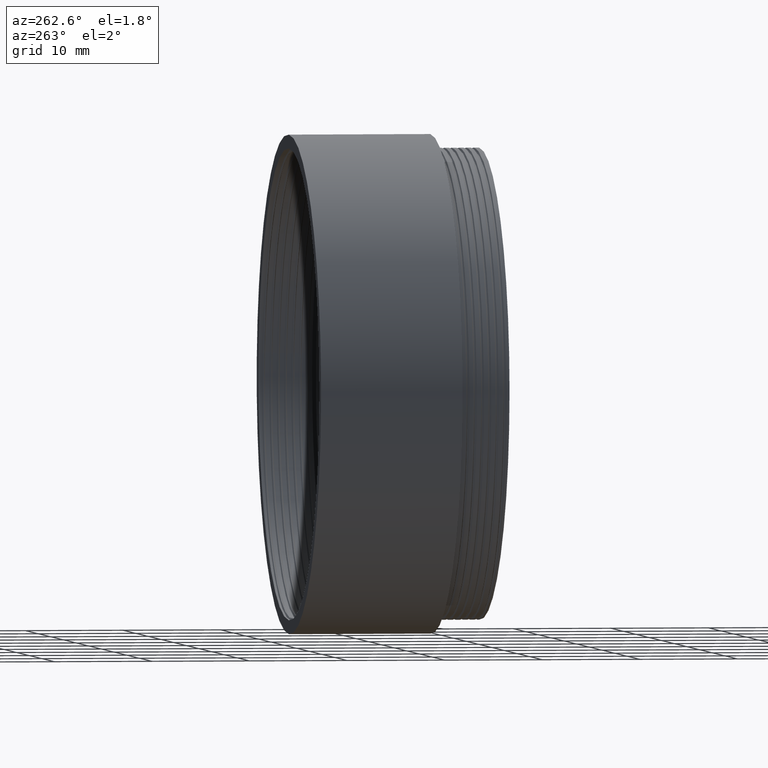
[diagram: clean part render]
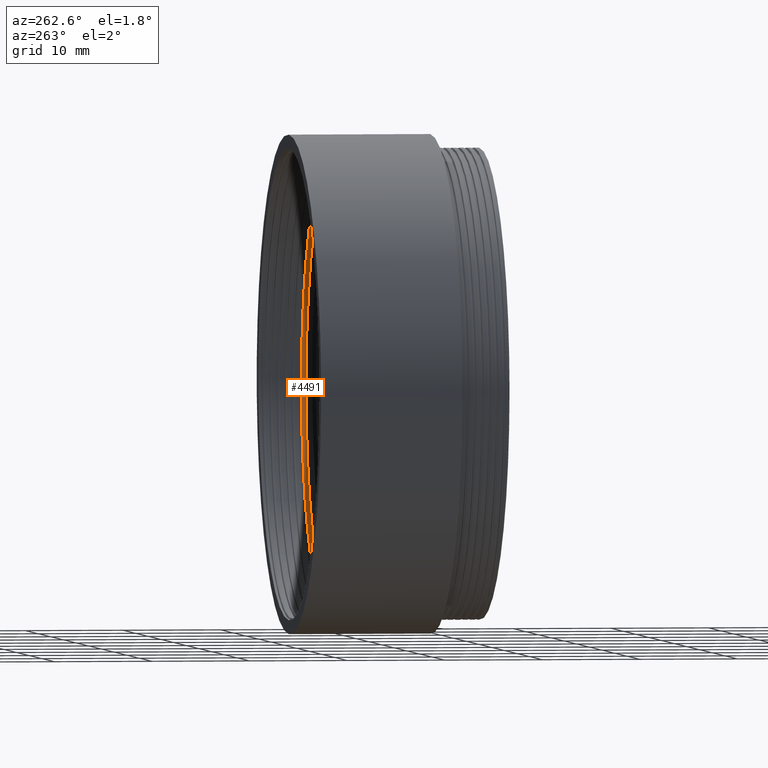
[diagram: same view with one face highlighted and labeled with its STEP entity id]
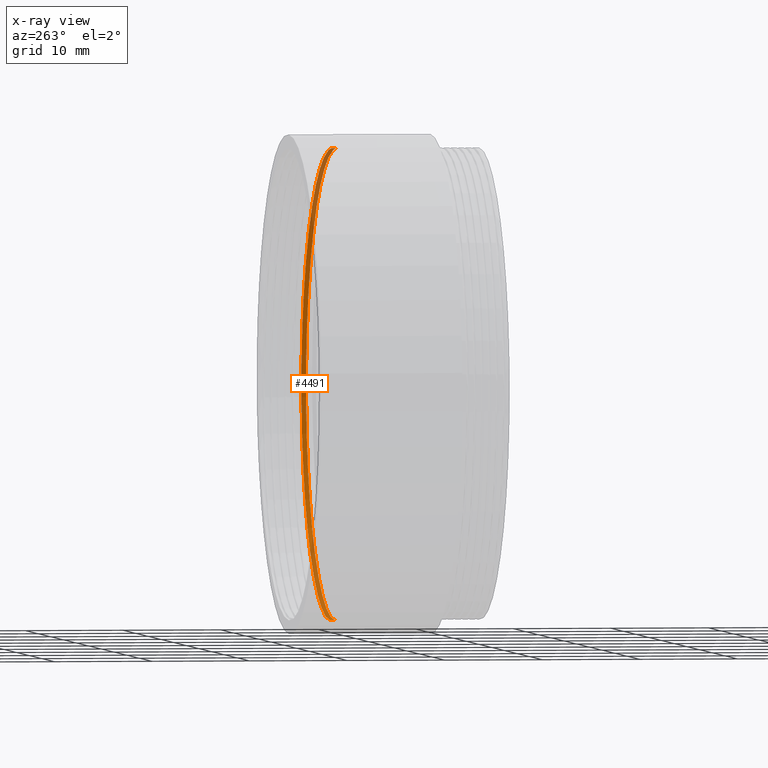
[diagram: x-ray of the same camera — body ghosted, the highlighted face saturated]
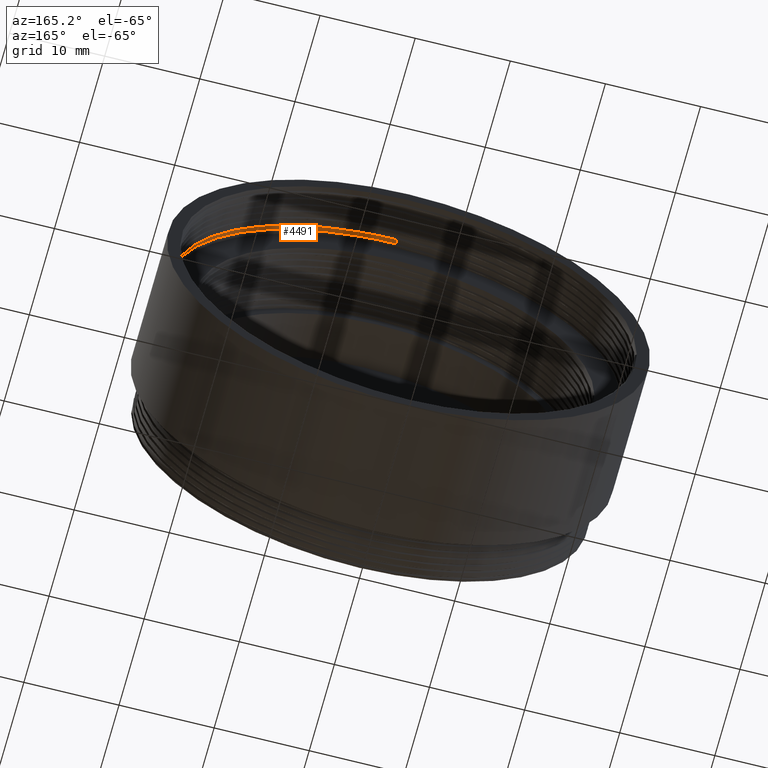
[diagram: same view with one face highlighted and labeled with its STEP entity id]
A machine part, auxiliary view. The second image highlights one B-rep face of the part: STEP entity #4491.
The next image is the same camera in x-ray: the body ghosted, the highlighted face saturated — about 34% of this face is hidden behind the body in this view.
A second angle (auxiliary view) of the same face is appended — the face is thin or edge-on in the first view.
In plain terms, the highlighted cylindrical surface (partial cylindrical patch) has radius 24 mm, axis along (-0, -1, -0).
Its self-contained STEP definition (entity closure, byte-faithful):
#59 = CARTESIAN_POINT ( 'NONE',  ( 23.99999999999999645, 14.67187500000000000, -9.941125496954285268 ) ) ;
#84 = AXIS2_PLACEMENT_3D ( 'NONE', #2111, #2140, #166 ) ;
#166 = DIRECTION ( 'NONE',  ( 0.000000000000000000, 0.000000000000000000, -1.000000000000000000 ) ) ;
#507 = CARTESIAN_POINT ( 'NONE',  ( 9.941125496954285268, 15.23781250086715211, -23.99999999999999645 ) ) ;
#624 = CARTESIAN_POINT ( 'NONE',  ( 9.941125496954295926, 14.95656250086715033, 23.99999999999999289 ) ) ;
#775 = CYLINDRICAL_SURFACE ( 'NONE', #84, 24.00000000000000000 ) ;
#859 = DIRECTION ( 'NONE',  ( -0.000000000000000000, -1.000000000000000000, -0.000000000000000000 ) ) ;
#934 = VERTEX_POINT ( 'NONE', #2169 ) ;
#959 = CARTESIAN_POINT ( 'NONE',  ( 2.939152317953647894E-15, 0.000000000000000000, 24.00000000000000000 ) ) ;
#1048 = CARTESIAN_POINT ( 'NONE',  ( 24.00000000000001421, 14.57812500000000178, 9.941125496954278162 ) ) ;
#1366 = LINE ( 'NONE', #959, #1521 ) ;
#1413 = CARTESIAN_POINT ( 'NONE',  ( 16.97056274847713908, 14.71875000000000000, -16.97056274847714263 ) ) ;
#1521 = VECTOR ( 'NONE', #859, 1000.000000000000000 ) ;
#1576 = CARTESIAN_POINT ( 'NONE',  ( 16.97056274847713908, 15.19093750086715211, -16.97056274847714263 ) ) ;
#1655 = EDGE_CURVE ( 'NONE', #3166, #934, #5467, .T. ) ;
#1787 = CARTESIAN_POINT ( 'NONE',  ( -1.469576158976823947E-15, 14.81250000000000000, -24.00000000000000000 ) ) ;
#1792 = LINE ( 'NONE', #4228, #2598 ) ;
#2003 = CARTESIAN_POINT ( 'NONE',  ( 24.00000000000000000, 14.62500000000000000, -2.939152317953647894E-15 ) ) ;
#2111 = CARTESIAN_POINT ( 'NONE',  ( 0.000000000000000000, 0.000000000000000000, 0.000000000000000000 ) ) ;
#2140 = DIRECTION ( 'NONE',  ( -0.000000000000000000, -1.000000000000000000, -0.000000000000000000 ) ) ;
#2169 = CARTESIAN_POINT ( 'NONE',  ( 4.408728476930470856E-15, 14.43749999999999822, 24.00000000000000000 ) ) ;
#2244 = EDGE_CURVE ( 'NONE', #6309, #934, #1366, .T. ) ;
#2466 = CARTESIAN_POINT ( 'NONE',  ( -1.469576158976823947E-15, 14.81250000000000000, -24.00000000000000000 ) ) ;
#2598 = VECTOR ( 'NONE', #4825, 1000.000000000000000 ) ;
#2620 = CARTESIAN_POINT ( 'NONE',  ( -1.469576158976823947E-15, 15.28468750086715211, -24.00000000000000000 ) ) ;
#2961 = CARTESIAN_POINT ( 'NONE',  ( -1.469576158976823947E-15, 15.28468750086715211, -24.00000000000000000 ) ) ;
#2986 = CARTESIAN_POINT ( 'NONE',  ( 23.99999999999999645, 15.14406250086715211, -9.941125496954285268 ) ) ;
#2994 = CARTESIAN_POINT ( 'NONE',  ( 16.97056274847714619, 14.53124999999999822, 16.97056274847713908 ) ) ;
#3029 = EDGE_CURVE ( 'NONE', #4397, #3166, #1792, .T. ) ;
#3166 = VERTEX_POINT ( 'NONE', #2466 ) ;
#3293 = CARTESIAN_POINT ( 'NONE',  ( 9.941125496954336782, 14.76562499999999822, -23.99999999999994671 ) ) ;
#3422 = ORIENTED_EDGE ( 'NONE', *, *, #4249, .F. ) ;
#3538 = EDGE_LOOP ( 'NONE', ( #4400, #3422, #4715, #5505 ) ) ;
#3742 = CARTESIAN_POINT ( 'NONE',  ( 9.941125496954242635, 14.48437500000000000, 24.00000000000004619 ) ) ;
#3980 = CARTESIAN_POINT ( 'NONE',  ( 24.00000000000001421, 15.05031250086715389, 9.941125496954278162 ) ) ;
#4228 = CARTESIAN_POINT ( 'NONE',  ( 0.000000000000000000, 0.000000000000000000, -24.00000000000000000 ) ) ;
#4249 = EDGE_CURVE ( 'NONE', #4397, #6309, #6189, .T. ) ;
#4397 = VERTEX_POINT ( 'NONE', #2620 ) ;
#4400 = ORIENTED_EDGE ( 'NONE', *, *, #2244, .F. ) ;
#4491 = ADVANCED_FACE ( 'NONE', ( #5049 ), #775, .F. ) ;
#4715 = ORIENTED_EDGE ( 'NONE', *, *, #3029, .T. ) ;
#4825 = DIRECTION ( 'NONE',  ( -0.000000000000000000, -1.000000000000000000, -0.000000000000000000 ) ) ;
#4994 = CARTESIAN_POINT ( 'NONE',  ( 4.408728476930470856E-15, 14.43749999999999822, 24.00000000000000000 ) ) ;
#5049 = FACE_OUTER_BOUND ( 'NONE', #3538, .T. ) ;
#5467 =( BOUNDED_CURVE ( )  B_SPLINE_CURVE ( 2, ( #1787, #3293, #1413, #59, #2003, #1048, #2994, #3742, #4994 ),
 .UNSPECIFIED., .F., .T. ) 
 B_SPLINE_CURVE_WITH_KNOTS ( ( 3, 2, 2, 2, 3 ),
 ( 0.7812500000000001110, 0.7968750000000001110, 0.8125000000000001110, 0.8281250000000001110, 0.8437500000000001110 ),
 .UNSPECIFIED. ) 
 CURVE ( )  GEOMETRIC_REPRESENTATION_ITEM ( )  RATIONAL_B_SPLINE_CURVE ( ( 0.9999999999999994449, 0.9238795325112872936, 1.000000000000000000, 0.9238795325112867385, 1.000000000000000000, 0.9238795325112867385, 1.000000000000000000, 0.9238795325112861834, 1.000000000000000444 ) ) 
 REPRESENTATION_ITEM ( '' )  );
#5505 = ORIENTED_EDGE ( 'NONE', *, *, #1655, .T. ) ;
#5766 = CARTESIAN_POINT ( 'NONE',  ( 4.408728476930470856E-15, 14.90968750086715033, 24.00000000000000000 ) ) ;
#5885 = CARTESIAN_POINT ( 'NONE',  ( 24.00000000000000000, 15.09718750086715211, -2.939152317953647894E-15 ) ) ;
#5912 = CARTESIAN_POINT ( 'NONE',  ( 16.97056274847714619, 15.00343750086715211, 16.97056274847713908 ) ) ;
#5995 = CARTESIAN_POINT ( 'NONE',  ( 4.408728476930470856E-15, 14.90968750086715033, 24.00000000000000000 ) ) ;
#6189 =( BOUNDED_CURVE ( )  B_SPLINE_CURVE ( 2, ( #2961, #507, #1576, #2986, #5885, #3980, #5912, #624, #5995 ),
 .UNSPECIFIED., .F., .F. ) 
 B_SPLINE_CURVE_WITH_KNOTS ( ( 3, 2, 2, 2, 3 ),
 ( 0.6562500000000000000, 0.6718750000000000000, 0.6875000000000000000, 0.7031250000000000000, 0.7187500000000000000 ),
 .UNSPECIFIED. ) 
 CURVE ( )  GEOMETRIC_REPRESENTATION_ITEM ( )  RATIONAL_B_SPLINE_CURVE ( ( 1.000000000000000000, 0.9238795325112867385, 1.000000000000000000, 0.9238795325112867385, 1.000000000000000000, 0.9238795325112867385, 1.000000000000000000, 0.9238795325112867385, 1.000000000000000000 ) ) 
 REPRESENTATION_ITEM ( '' )  );
#6309 = VERTEX_POINT ( 'NONE', #5766 ) ;